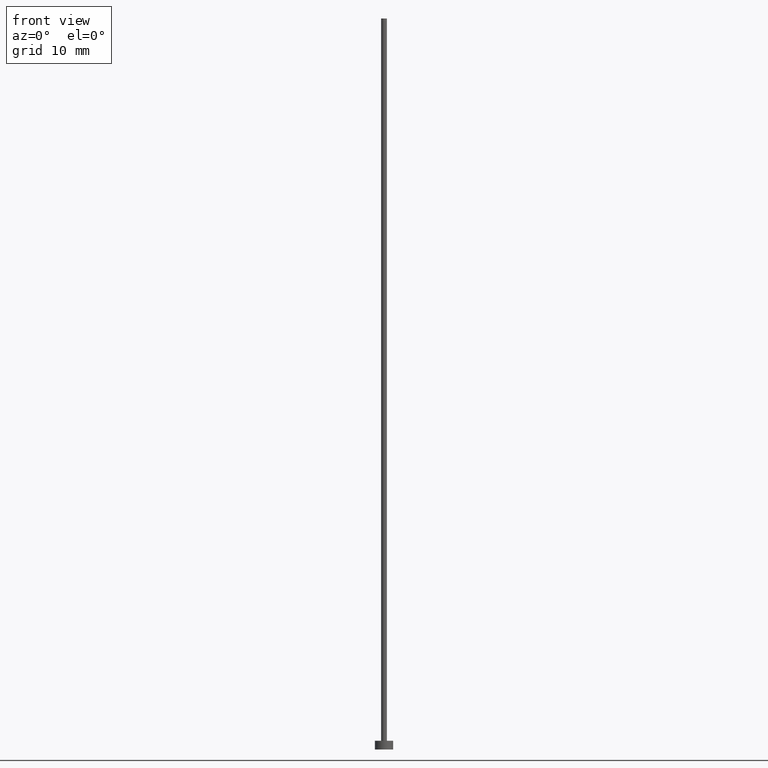
[diagram: clean part render]
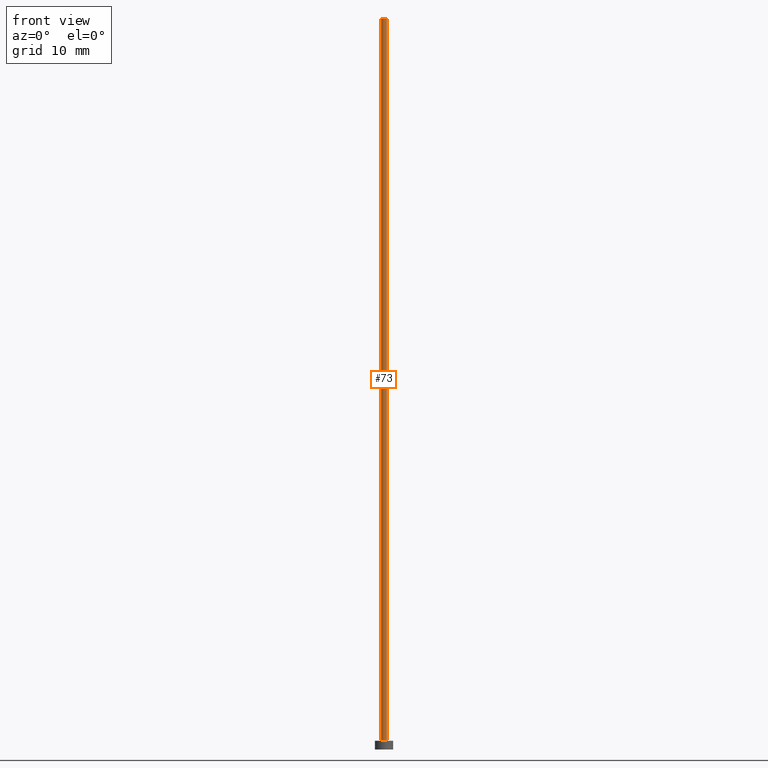
[diagram: same view with one face highlighted and labeled with its STEP entity id]
A machine part, front view. The second image highlights one B-rep face of the part: STEP entity #73.
In plain terms, the highlighted cylindrical surface (edge-blend (fillet) strip) has radius 0.4 mm, axis along (-0, -0, -1).
Its self-contained STEP definition (entity closure, byte-faithful):
#14 = CARTESIAN_POINT ( 'NONE',  ( 0.000000000000000000, 0.000000000000000000, 1.199999999999999956 ) ) ;
#16 = CARTESIAN_POINT ( 'NONE',  ( -0.4000000000000000222, 0.000000000000000000, 100.0000000000000000 ) ) ;
#40 = VERTEX_POINT ( 'NONE', #88 ) ;
#45 = EDGE_CURVE ( 'NONE', #235, #215, #132, .T. ) ;
#54 = AXIS2_PLACEMENT_3D ( 'NONE', #197, #177, #238 ) ;
#62 = AXIS2_PLACEMENT_3D ( 'NONE', #14, #250, #135 ) ;
#64 = ORIENTED_EDGE ( 'NONE', *, *, #170, .T. ) ;
#69 = CYLINDRICAL_SURFACE ( 'NONE', #54, 0.4000000000000000222 ) ;
#73 = ADVANCED_FACE ( 'NONE', ( #147 ), #69, .T. ) ;
#80 = CIRCLE ( 'NONE', #118, 0.4000000000000000222 ) ;
#88 = CARTESIAN_POINT ( 'NONE',  ( -0.4000000000000000222, 0.000000000000000000, 1.199999999999999956 ) ) ;
#103 = CIRCLE ( 'NONE', #62, 0.4000000000000000222 ) ;
#115 = DIRECTION ( 'NONE',  ( -0.000000000000000000, -0.000000000000000000, -1.000000000000000000 ) ) ;
#118 = AXIS2_PLACEMENT_3D ( 'NONE', #176, #239, #133 ) ;
#128 = EDGE_CURVE ( 'NONE', #194, #235, #80, .T. ) ;
#131 = CARTESIAN_POINT ( 'NONE',  ( 0.4000000000000000222, 4.898587196589413075E-17, 100.0000000000000000 ) ) ;
#132 = LINE ( 'NONE', #158, #143 ) ;
#133 = DIRECTION ( 'NONE',  ( 1.000000000000000000, 0.000000000000000000, 0.000000000000000000 ) ) ;
#135 = DIRECTION ( 'NONE',  ( 1.000000000000000000, 0.000000000000000000, 0.000000000000000000 ) ) ;
#143 = VECTOR ( 'NONE', #221, 1000.000000000000000 ) ;
#147 = FACE_OUTER_BOUND ( 'NONE', #210, .T. ) ;
#154 = ORIENTED_EDGE ( 'NONE', *, *, #165, .T. ) ;
#157 = VECTOR ( 'NONE', #115, 1000.000000000000000 ) ;
#158 = CARTESIAN_POINT ( 'NONE',  ( 0.4000000000000000222, 4.898587196589413075E-17, 100.0000000000000000 ) ) ;
#163 = LINE ( 'NONE', #16, #157 ) ;
#165 = EDGE_CURVE ( 'NONE', #194, #40, #163, .T. ) ;
#168 = CARTESIAN_POINT ( 'NONE',  ( -0.4000000000000000222, 0.000000000000000000, 100.0000000000000000 ) ) ;
#170 = EDGE_CURVE ( 'NONE', #40, #215, #103, .T. ) ;
#176 = CARTESIAN_POINT ( 'NONE',  ( 0.000000000000000000, 0.000000000000000000, 100.0000000000000000 ) ) ;
#177 = DIRECTION ( 'NONE',  ( -0.000000000000000000, -0.000000000000000000, -1.000000000000000000 ) ) ;
#194 = VERTEX_POINT ( 'NONE', #168 ) ;
#197 = CARTESIAN_POINT ( 'NONE',  ( 0.000000000000000000, 0.000000000000000000, 100.0000000000000000 ) ) ;
#210 = EDGE_LOOP ( 'NONE', ( #213, #255, #154, #64 ) ) ;
#213 = ORIENTED_EDGE ( 'NONE', *, *, #45, .F. ) ;
#215 = VERTEX_POINT ( 'NONE', #245 ) ;
#221 = DIRECTION ( 'NONE',  ( -0.000000000000000000, -0.000000000000000000, -1.000000000000000000 ) ) ;
#235 = VERTEX_POINT ( 'NONE', #131 ) ;
#238 = DIRECTION ( 'NONE',  ( -1.000000000000000000, 0.000000000000000000, 0.000000000000000000 ) ) ;
#239 = DIRECTION ( 'NONE',  ( 0.000000000000000000, 0.000000000000000000, 1.000000000000000000 ) ) ;
#245 = CARTESIAN_POINT ( 'NONE',  ( 0.4000000000000000222, 4.898587196589413075E-17, 1.199999999999999956 ) ) ;
#250 = DIRECTION ( 'NONE',  ( 0.000000000000000000, 0.000000000000000000, 1.000000000000000000 ) ) ;
#255 = ORIENTED_EDGE ( 'NONE', *, *, #128, .F. ) ;